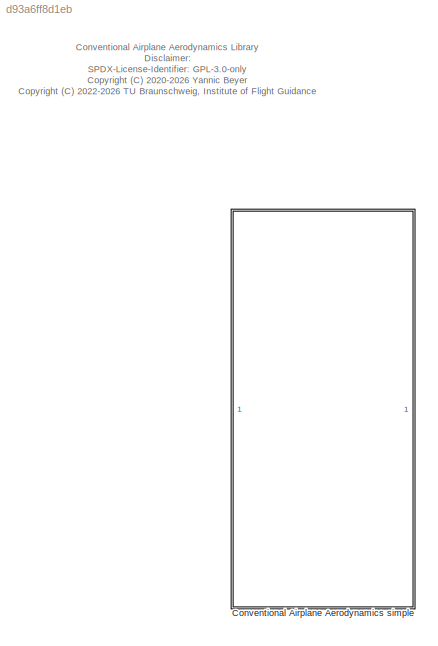
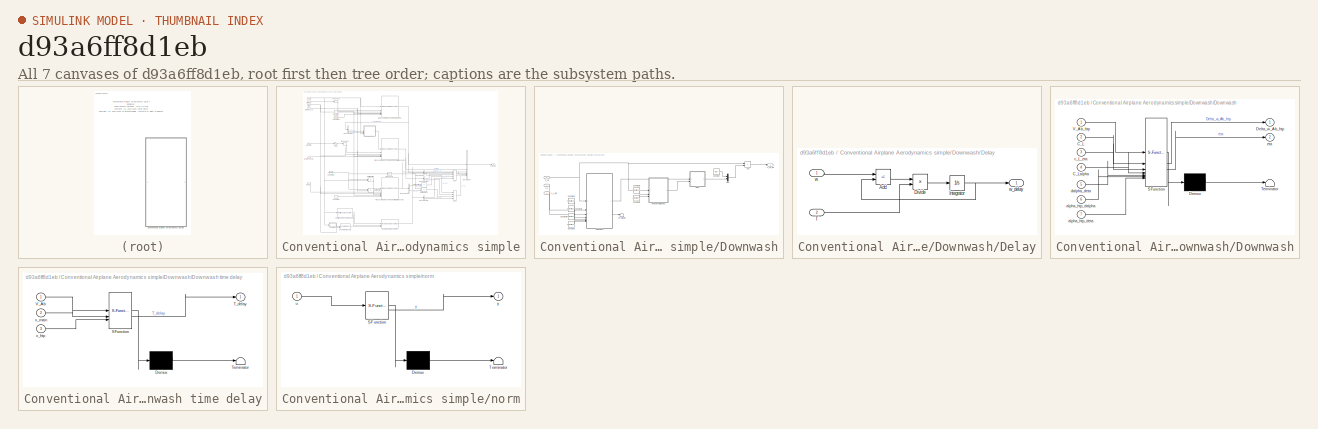
[diagram: thumbnail index - all 7 canvases of the model, root first then tree order]
MODEL slx_d93a6ff8d1eb
KIND library
CONFIG AbsTol = auto
CONFIG EnableMultiTasking = off
CONFIG FixedStep = auto
CONFIG MaxStep = auto
CONFIG MinStep = auto
CONFIG RelTol = 1e-3
CONFIG SampleTimeConstraint = Unconstrained
CONFIG SolverName = VariableStepAuto
CONFIG StartTime = 0.0
CONFIG StopTime = 10.0
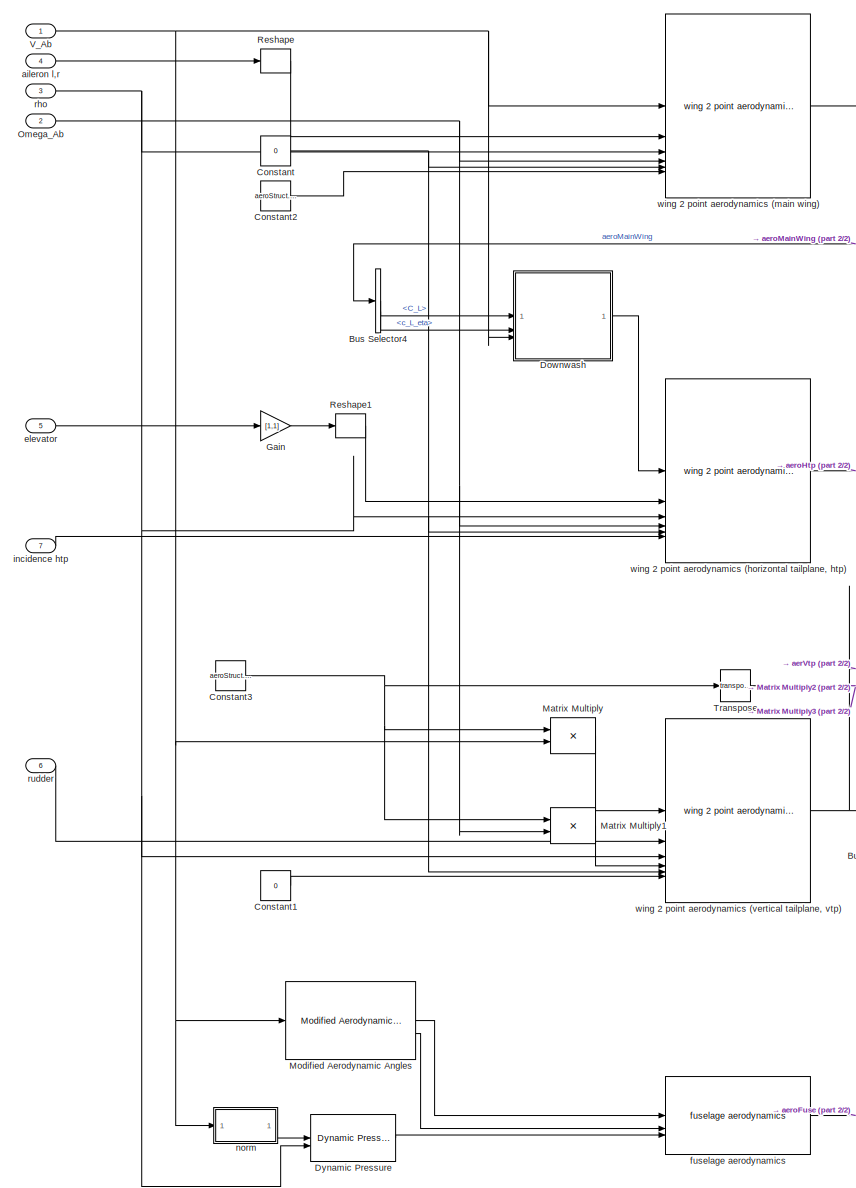
[diagram: Conventional Airplane Aerodynamics simple - part 1/2, left side, full height]
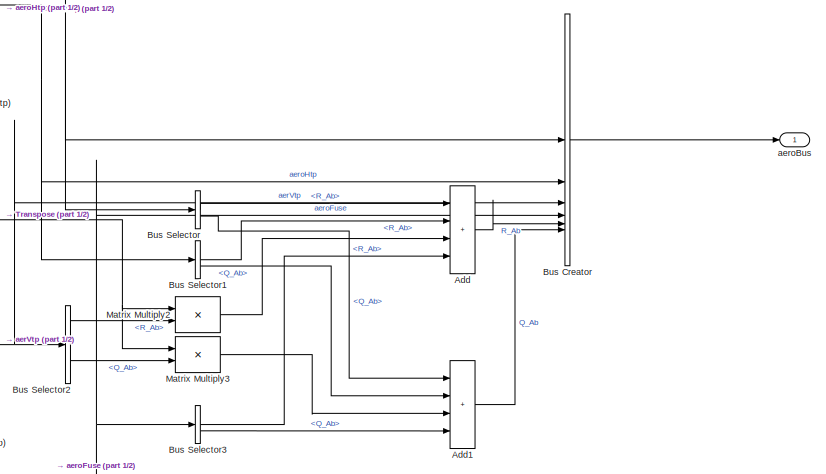
[diagram: Conventional Airplane Aerodynamics simple - part 2/2, middle right region]
BLOCK [SubSystem] Conventional Airplane Aerodynamics simple
BLOCK [Sum] Conventional Airplane Aerodynamics simple/Add
  IconShape = rectangular
  Inputs = ++++
BLOCK [Sum] Conventional Airplane Aerodynamics simple/Add1
  IconShape = rectangular
  Inputs = ++++
BLOCK [BusCreator] Conventional Airplane Aerodynamics simple/Bus Creator
  DisplayOption = bar
  InheritFromInputs = on
  Inputs = 6
BLOCK [BusSelector] Conventional Airplane Aerodynamics simple/Bus Selector
  OutputSignals = dynamicsBody.R_Ab,dynamicsBody.Q_Ab
BLOCK [BusSelector] Conventional Airplane Aerodynamics simple/Bus Selector1
  OutputSignals = dynamicsBody.R_Ab,dynamicsBody.Q_Ab
BLOCK [BusSelector] Conventional Airplane Aerodynamics simple/Bus Selector2
  OutputSignals = dynamicsBody.R_Ab,dynamicsBody.Q_Ab
BLOCK [BusSelector] Conventional Airplane Aerodynamics simple/Bus Selector3
  OutputSignals = R_Ab,Q_Ab
BLOCK [BusSelector] Conventional Airplane Aerodynamics simple/Bus Selector4
  OutputSignals = dynamicsWing.C_L,dynamicsWing.c_L_eta
BLOCK [Constant] Conventional Airplane Aerodynamics simple/Constant
  Value = 0
BLOCK [Constant] Conventional Airplane Aerodynamics simple/Constant1
  Value = 0
BLOCK [Constant] Conventional Airplane Aerodynamics simple/Constant2
  Value = aeroStruct.config.wingMainIncidence
BLOCK [Constant] Conventional Airplane Aerodynamics simple/Constant3
  Value = aeroStruct.config.wingVtpRot
BLOCK [SubSystem] Conventional Airplane Aerodynamics simple/Downwash
BLOCK [Sum] Conventional Airplane Aerodynamics simple/Downwash/Add
  IconShape = rectangular
BLOCK [Inport] Conventional Airplane Aerodynamics simple/Downwash/C_L
BLOCK [Constant] Conventional Airplane Aerodynamics simple/Downwash/Constant
  Value = [0;0]
  VectorParams1D = off
BLOCK [Constant] Conventional Airplane Aerodynamics simple/Downwash/Constant4
  Value = aeroStruct.wingMain.polar.params.C_Lalpha
BLOCK [Constant] Conventional Airplane Aerodynamics simple/Downwash/Constant5
  Value = aeroStruct.wingMain.flap.dalpha_deta
BLOCK [Constant] Conventional Airplane Aerodynamics simple/Downwash/Constant6
  Value = aeroStruct.downwash.alpha_htp_dalpha
BLOCK [Constant] Conventional Airplane Aerodynamics simple/Downwash/Constant7
  Value = aeroStruct.downwash.alpha_htp_deta
BLOCK [Constant] Conventional Airplane Aerodynamics simple/Downwash/Constant8
  Value = aeroStruct.config.wingMainPos(1)
BLOCK [Constant] Conventional Airplane Aerodynamics simple/Downwash/Constant9
  Value = aeroStruct.config.wingHtpPos(1)
BLOCK [SubSystem] Conventional Airplane Aerodynamics simple/Downwash/Delay
BLOCK [Sum] Conventional Airplane Aerodynamics simple/Downwash/Delay/Add
  IconShape = rectangular
  Inputs = +-
BLOCK [Product] Conventional Airplane Aerodynamics simple/Downwash/Delay/Divide
  Inputs = */
BLOCK [Integrator] Conventional Airplane Aerodynamics simple/Downwash/Delay/Integrator
BLOCK [Inport] Conventional Airplane Aerodynamics simple/Downwash/Delay/T
  Port = 2
BLOCK [Inport] Conventional Airplane Aerodynamics simple/Downwash/Delay/w
BLOCK [Outport] Conventional Airplane Aerodynamics simple/Downwash/Delay/w_delay
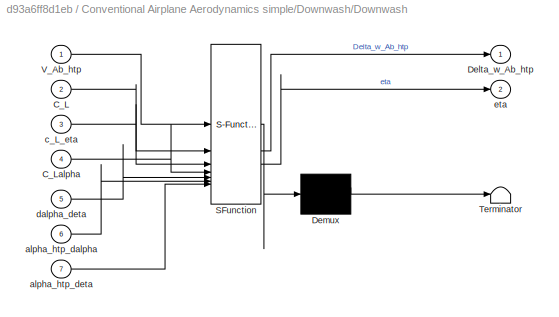
BLOCK [SubSystem] Conventional Airplane Aerodynamics simple/Downwash/Downwash
  ErrorFcn = Stateflow.Translate.translate
  PermitHierarchicalResolution = ExplicitOnly
  SFBlockType = MATLAB Function
  TreatAsAtomicUnit = on
BLOCK [SubSystem] Conventional Airplane Aerodynamics simple/Downwash/Downwash time delay
  ErrorFcn = Stateflow.Translate.translate
  PermitHierarchicalResolution = ExplicitOnly
  SFBlockType = MATLAB Function
  TreatAsAtomicUnit = on
BLOCK [Demux] Conventional Airplane Aerodynamics simple/Downwash/Downwash time delay/ Demux 
  Outputs = 1
BLOCK [S-Function] Conventional Airplane Aerodynamics simple/Downwash/Downwash time delay/ SFunction 
  EnableBusSupport = off
  FunctionName = sf_sfun
  PortCounts = [3 2]
  SFcnIsStateOwnerBlock = off
  SFunctionDeploymentMode = off
  Tag = Stateflow S-Function 120
BLOCK [Terminator] Conventional Airplane Aerodynamics simple/Downwash/Downwash time delay/ Terminator 
BLOCK [Outport] Conventional Airplane Aerodynamics simple/Downwash/Downwash time delay/T_delay
  VectorParamsAs1DForOutWhenUnconnected = off
BLOCK [Inport] Conventional Airplane Aerodynamics simple/Downwash/Downwash time delay/V_Ab
BLOCK [Inport] Conventional Airplane Aerodynamics simple/Downwash/Downwash time delay/x_htp
  Port = 3
BLOCK [Inport] Conventional Airplane Aerodynamics simple/Downwash/Downwash time delay/x_main
  Port = 2
BLOCK [Demux] Conventional Airplane Aerodynamics simple/Downwash/Downwash/ Demux 
  Outputs = 1
BLOCK [S-Function] Conventional Airplane Aerodynamics simple/Downwash/Downwash/ SFunction 
  EnableBusSupport = off
  FunctionName = sf_sfun
  PortCounts = [7 3]
  SFcnIsStateOwnerBlock = off
  SFunctionDeploymentMode = off
  Tag = Stateflow S-Function 119
BLOCK [Terminator] Conventional Airplane Aerodynamics simple/Downwash/Downwash/ Terminator 
BLOCK [Inport] Conventional Airplane Aerodynamics simple/Downwash/Downwash/C_L
  Port = 2
BLOCK [Inport] Conventional Airplane Aerodynamics simple/Downwash/Downwash/C_Lalpha
  Port = 4
BLOCK [Outport] Conventional Airplane Aerodynamics simple/Downwash/Downwash/Delta_w_Ab_htp
  VectorParamsAs1DForOutWhenUnconnected = off
BLOCK [Inport] Conventional Airplane Aerodynamics simple/Downwash/Downwash/V_Ab_htp
BLOCK [Inport] Conventional Airplane Aerodynamics simple/Downwash/Downwash/alpha_htp_dalpha
  Port = 6
BLOCK [Inport] Conventional Airplane Aerodynamics simple/Downwash/Downwash/alpha_htp_deta
  Port = 7
BLOCK [Inport] Conventional Airplane Aerodynamics simple/Downwash/Downwash/c_L_eta
  Port = 3
BLOCK [Inport] Conventional Airplane Aerodynamics simple/Downwash/Downwash/dalpha_deta
  Port = 5
BLOCK [Outport] Conventional Airplane Aerodynamics simple/Downwash/Downwash/eta
  Port = 2
  VectorParamsAs1DForOutWhenUnconnected = off
BLOCK [Mux] Conventional Airplane Aerodynamics simple/Downwash/Mux
  DisplayOption = bar
  Inputs = 2
BLOCK [Terminator] Conventional Airplane Aerodynamics simple/Downwash/Terminator
BLOCK [Inport] Conventional Airplane Aerodynamics simple/Downwash/V_Ab
  Port = 3
BLOCK [Outport] Conventional Airplane Aerodynamics simple/Downwash/V_Ab_htp
  VectorParamsAs1DForOutWhenUnconnected = off
BLOCK [Inport] Conventional Airplane Aerodynamics simple/Downwash/c_L_eta
  Port = 2
BLOCK [Reference] Conventional Airplane Aerodynamics simple/Dynamic Pressure  REF=flight_parameters_lib/Dynamic Pressure  (lib defined in slx_01e6108afe6f)
  SourceBlock = flight_parameters_lib/Dynamic Pressure
  SourceProductName = LADAC
BLOCK [Gain] Conventional Airplane Aerodynamics simple/Gain
  Gain = [1,1]
BLOCK [Product] Conventional Airplane Aerodynamics simple/Matrix Multiply
  Multiplication = Matrix(*)
BLOCK [Product] Conventional Airplane Aerodynamics simple/Matrix Multiply1
  Multiplication = Matrix(*)
BLOCK [Product] Conventional Airplane Aerodynamics simple/Matrix Multiply2
  Multiplication = Matrix(*)
BLOCK [Product] Conventional Airplane Aerodynamics simple/Matrix Multiply3
  Multiplication = Matrix(*)
BLOCK [Reference] Conventional Airplane Aerodynamics simple/Modified Aerodynamic Angles  REF=flight_parameters_lib/Modified Aerodynamic Angles  (lib defined in slx_01e6108afe6f)
  SourceBlock = flight_parameters_lib/Modified Aerodynamic Angles
  SourceProductName = LADAC
  SourceType = SubSystem
BLOCK [Inport] Conventional Airplane Aerodynamics simple/Omega_Ab
  Port = 2
BLOCK [Reshape] Conventional Airplane Aerodynamics simple/Reshape
  OutputDimensionality = Row vector (2-D)
BLOCK [Reshape] Conventional Airplane Aerodynamics simple/Reshape1
  OutputDimensionality = Row vector (2-D)
BLOCK [Math] Conventional Airplane Aerodynamics simple/Transpose
  Operator = transpose
  SignedPower = on
BLOCK [Inport] Conventional Airplane Aerodynamics simple/V_Ab
BLOCK [Outport] Conventional Airplane Aerodynamics simple/aeroBus
  VectorParamsAs1DForOutWhenUnconnected = off
BLOCK [Inport] Conventional Airplane Aerodynamics simple/aileron l,r
  Port = 4
BLOCK [Inport] Conventional Airplane Aerodynamics simple/elevator
  Port = 5
BLOCK [Reference] Conventional Airplane Aerodynamics simple/fuselage aerodynamics  REF=simpleFuselage_lib/fuselage aerodynamics
  SourceBlock = simpleFuselage_lib/fuselage aerodynamics
  SourceProductName = LADAC
BLOCK [Inport] Conventional Airplane Aerodynamics simple/incidence htp
  Port = 7
BLOCK [SubSystem] Conventional Airplane Aerodynamics simple/norm
  ErrorFcn = Stateflow.Translate.translate
  PermitHierarchicalResolution = ExplicitOnly
  SFBlockType = MATLAB Function
  TreatAsAtomicUnit = on
BLOCK [Demux] Conventional Airplane Aerodynamics simple/norm/ Demux 
  Outputs = 1
BLOCK [S-Function] Conventional Airplane Aerodynamics simple/norm/ SFunction 
  EnableBusSupport = off
  FunctionName = sf_sfun
  PortCounts = [1 2]
  SFcnIsStateOwnerBlock = off
  SFunctionDeploymentMode = off
  Tag = Stateflow S-Function 2
BLOCK [Terminator] Conventional Airplane Aerodynamics simple/norm/ Terminator 
BLOCK [Inport] Conventional Airplane Aerodynamics simple/norm/u
BLOCK [Outport] Conventional Airplane Aerodynamics simple/norm/y
  VectorParamsAs1DForOutWhenUnconnected = off
BLOCK [Inport] Conventional Airplane Aerodynamics simple/rho
  Port = 3
BLOCK [Inport] Conventional Airplane Aerodynamics simple/rudder
  Port = 6
BLOCK [Reference] Conventional Airplane Aerodynamics simple/wing 2 point aerodynamics (horizontal tailplane, htp)  REF=simple_wing_lib/wing 2 point aerodynamics  (lib defined in slx_d7e68b13d310)
  SourceBlock = simple_wing_lib/wing 2 point aerodynamics
  SourceProductName = LADAC
BLOCK [Reference] Conventional Airplane Aerodynamics simple/wing 2 point aerodynamics (main wing)  REF=simple_wing_lib/wing 2 point aerodynamics  (lib defined in slx_d7e68b13d310)
  SourceBlock = simple_wing_lib/wing 2 point aerodynamics
  SourceProductName = LADAC
BLOCK [Reference] Conventional Airplane Aerodynamics simple/wing 2 point aerodynamics (vertical tailplane, vtp)  REF=simple_wing_lib/wing 2 point aerodynamics  (lib defined in slx_d7e68b13d310)
  SourceBlock = simple_wing_lib/wing 2 point aerodynamics
  SourceProductName = LADAC
ANNOTATION (root): Conventional Airplane Aerodynamics Library Disclaimer: SPDX-License-Identifier: GPL-3.0-only <copyright redacted>
LINE Conventional Airplane Aerodynamics simple/Add1:1 -> Conventional Airplane Aerodynamics simple/Bus Creator:6
LINE Conventional Airplane Aerodynamics simple/Add:1 -> Conventional Airplane Aerodynamics simple/Bus Creator:5
LINE Conventional Airplane Aerodynamics simple/Bus Creator:1 -> Conventional Airplane Aerodynamics simple/aeroBus:1
LINE Conventional Airplane Aerodynamics simple/Bus Selector1:1 -> Conventional Airplane Aerodynamics simple/Add:2
LINE Conventional Airplane Aerodynamics simple/Bus Selector1:2 -> Conventional Airplane Aerodynamics simple/Add1:2
LINE Conventional Airplane Aerodynamics simple/Bus Selector2:1 -> Conventional Airplane Aerodynamics simple/Matrix Multiply2:2
LINE Conventional Airplane Aerodynamics simple/Bus Selector2:2 -> Conventional Airplane Aerodynamics simple/Matrix Multiply3:2
LINE Conventional Airplane Aerodynamics simple/Bus Selector3:1 -> Conventional Airplane Aerodynamics simple/Add:4
LINE Conventional Airplane Aerodynamics simple/Bus Selector3:2 -> Conventional Airplane Aerodynamics simple/Add1:4
LINE Conventional Airplane Aerodynamics simple/Bus Selector4:1 -> Conventional Airplane Aerodynamics simple/Downwash:1
LINE Conventional Airplane Aerodynamics simple/Bus Selector4:2 -> Conventional Airplane Aerodynamics simple/Downwash:2
LINE Conventional Airplane Aerodynamics simple/Bus Selector:1 -> Conventional Airplane Aerodynamics simple/Add:1
LINE Conventional Airplane Aerodynamics simple/Bus Selector:2 -> Conventional Airplane Aerodynamics simple/Add1:1
LINE Conventional Airplane Aerodynamics simple/Constant1:1 -> Conventional Airplane Aerodynamics simple/wing 2 point aerodynamics (vertical tailplane, vtp):6
LINE Conventional Airplane Aerodynamics simple/Constant2:1 -> Conventional Airplane Aerodynamics simple/wing 2 point aerodynamics (main wing):6
NET Conventional Airplane Aerodynamics simple/Constant3:1 -> Conventional Airplane Aerodynamics simple/Matrix Multiply1:1, Conventional Airplane Aerodynamics simple/Matrix Multiply:1, Conventional Airplane Aerodynamics simple/Transpose:1
NET Conventional Airplane Aerodynamics simple/Constant:1 -> Conventional Airplane Aerodynamics simple/wing 2 point aerodynamics (horizontal tailplane, htp):5, Conventional Airplane Aerodynamics simple/wing 2 point aerodynamics (main wing):5, Conventional Airplane Aerodynamics simple/wing 2 point aerodynamics (vertical tailplane, vtp):5
LINE Conventional Airplane Aerodynamics simple/Downwash/Add:1 -> Conventional Airplane Aerodynamics simple/Downwash/V_Ab_htp:1
LINE Conventional Airplane Aerodynamics simple/Downwash/C_L:1 -> Conventional Airplane Aerodynamics simple/Downwash/Downwash:2
LINE Conventional Airplane Aerodynamics simple/Downwash/Constant4:1 -> Conventional Airplane Aerodynamics simple/Downwash/Downwash:4
LINE Conventional Airplane Aerodynamics simple/Downwash/Constant5:1 -> Conventional Airplane Aerodynamics simple/Downwash/Downwash:5
LINE Conventional Airplane Aerodynamics simple/Downwash/Constant6:1 -> Conventional Airplane Aerodynamics simple/Downwash/Downwash:6
LINE Conventional Airplane Aerodynamics simple/Downwash/Constant7:1 -> Conventional Airplane Aerodynamics simple/Downwash/Downwash:7
LINE Conventional Airplane Aerodynamics simple/Downwash/Constant8:1 -> Conventional Airplane Aerodynamics simple/Downwash/Downwash time delay:2
LINE Conventional Airplane Aerodynamics simple/Downwash/Constant9:1 -> Conventional Airplane Aerodynamics simple/Downwash/Downwash time delay:3
LINE Conventional Airplane Aerodynamics simple/Downwash/Constant:1 -> Conventional Airplane Aerodynamics simple/Downwash/Mux:1
LINE Conventional Airplane Aerodynamics simple/Downwash/Delay/Add:1 -> Conventional Airplane Aerodynamics simple/Downwash/Delay/Divide:1
LINE Conventional Airplane Aerodynamics simple/Downwash/Delay/Divide:1 -> Conventional Airplane Aerodynamics simple/Downwash/Delay/Integrator:1
NET Conventional Airplane Aerodynamics simple/Downwash/Delay/Integrator:1 -> Conventional Airplane Aerodynamics simple/Downwash/Delay/Add:2, Conventional Airplane Aerodynamics simple/Downwash/Delay/w_delay:1
LINE Conventional Airplane Aerodynamics simple/Downwash/Delay/T:1 -> Conventional Airplane Aerodynamics simple/Downwash/Delay/Divide:2
LINE Conventional Airplane Aerodynamics simple/Downwash/Delay/w:1 -> Conventional Airplane Aerodynamics simple/Downwash/Delay/Add:1
LINE Conventional Airplane Aerodynamics simple/Downwash/Delay:1 -> Conventional Airplane Aerodynamics simple/Downwash/Mux:2
LINE Conventional Airplane Aerodynamics simple/Downwash/Downwash time delay:1 -> Conventional Airplane Aerodynamics simple/Downwash/Delay:2
LINE Conventional Airplane Aerodynamics simple/Downwash/Downwash:1 -> Conventional Airplane Aerodynamics simple/Downwash/Delay:1
LINE Conventional Airplane Aerodynamics simple/Downwash/Downwash:2 -> Conventional Airplane Aerodynamics simple/Downwash/Terminator:1
LINE Conventional Airplane Aerodynamics simple/Downwash/Mux:1 -> Conventional Airplane Aerodynamics simple/Downwash/Add:2
NET Conventional Airplane Aerodynamics simple/Downwash/V_Ab:1 -> Conventional Airplane Aerodynamics simple/Downwash/Add:1, Conventional Airplane Aerodynamics simple/Downwash/Downwash time delay:1, Conventional Airplane Aerodynamics simple/Downwash/Downwash:1
LINE Conventional Airplane Aerodynamics simple/Downwash/c_L_eta:1 -> Conventional Airplane Aerodynamics simple/Downwash/Downwash:3
LINE Conventional Airplane Aerodynamics simple/Downwash:1 -> Conventional Airplane Aerodynamics simple/wing 2 point aerodynamics (horizontal tailplane, htp):1
LINE Conventional Airplane Aerodynamics simple/Dynamic Pressure:1 -> Conventional Airplane Aerodynamics simple/fuselage aerodynamics:3
LINE Conventional Airplane Aerodynamics simple/Gain:1 -> Conventional Airplane Aerodynamics simple/Reshape1:1
LINE Conventional Airplane Aerodynamics simple/Matrix Multiply1:1 -> Conventional Airplane Aerodynamics simple/wing 2 point aerodynamics (vertical tailplane, vtp):4
LINE Conventional Airplane Aerodynamics simple/Matrix Multiply2:1 -> Conventional Airplane Aerodynamics simple/Add:3
LINE Conventional Airplane Aerodynamics simple/Matrix Multiply3:1 -> Conventional Airplane Aerodynamics simple/Add1:3
LINE Conventional Airplane Aerodynamics simple/Matrix Multiply:1 -> Conventional Airplane Aerodynamics simple/wing 2 point aerodynamics (vertical tailplane, vtp):1
LINE Conventional Airplane Aerodynamics simple/Modified Aerodynamic Angles:1 -> Conventional Airplane Aerodynamics simple/fuselage aerodynamics:1
LINE Conventional Airplane Aerodynamics simple/Modified Aerodynamic Angles:2 -> Conventional Airplane Aerodynamics simple/fuselage aerodynamics:2
NET Conventional Airplane Aerodynamics simple/Omega_Ab:1 -> Conventional Airplane Aerodynamics simple/Matrix Multiply1:2, Conventional Airplane Aerodynamics simple/wing 2 point aerodynamics (horizontal tailplane, htp):4, Conventional Airplane Aerodynamics simple/wing 2 point aerodynamics (main wing):4
LINE Conventional Airplane Aerodynamics simple/Reshape1:1 -> Conventional Airplane Aerodynamics simple/wing 2 point aerodynamics (horizontal tailplane, htp):2
LINE Conventional Airplane Aerodynamics simple/Reshape:1 -> Conventional Airplane Aerodynamics simple/wing 2 point aerodynamics (main wing):2
NET Conventional Airplane Aerodynamics simple/Transpose:1 -> Conventional Airplane Aerodynamics simple/Matrix Multiply2:1, Conventional Airplane Aerodynamics simple/Matrix Multiply3:1
NET Conventional Airplane Aerodynamics simple/V_Ab:1 -> Conventional Airplane Aerodynamics simple/Downwash:3, Conventional Airplane Aerodynamics simple/Matrix Multiply:2, Conventional Airplane Aerodynamics simple/Modified Aerodynamic Angles:1, Conventional Airplane Aerodynamics simple/norm:1, Conventional Airplane Aerodynamics simple/wing 2 point aerodynamics (main wing):1
LINE Conventional Airplane Aerodynamics simple/aileron l,r:1 -> Conventional Airplane Aerodynamics simple/Reshape:1
LINE Conventional Airplane Aerodynamics simple/elevator:1 -> Conventional Airplane Aerodynamics simple/Gain:1
NET Conventional Airplane Aerodynamics simple/fuselage aerodynamics:1 -> Conventional Airplane Aerodynamics simple/Bus Creator:4, Conventional Airplane Aerodynamics simple/Bus Selector3:1
LINE Conventional Airplane Aerodynamics simple/incidence htp:1 -> Conventional Airplane Aerodynamics simple/wing 2 point aerodynamics (horizontal tailplane, htp):6
LINE Conventional Airplane Aerodynamics simple/norm:1 -> Conventional Airplane Aerodynamics simple/Dynamic Pressure:1
NET Conventional Airplane Aerodynamics simple/rho:1 -> Conventional Airplane Aerodynamics simple/Dynamic Pressure:2, Conventional Airplane Aerodynamics simple/wing 2 point aerodynamics (horizontal tailplane, htp):3, Conventional Airplane Aerodynamics simple/wing 2 point aerodynamics (main wing):3, Conventional Airplane Aerodynamics simple/wing 2 point aerodynamics (vertical tailplane, vtp):3
LINE Conventional Airplane Aerodynamics simple/rudder:1 -> Conventional Airplane Aerodynamics simple/wing 2 point aerodynamics (vertical tailplane, vtp):2
NET Conventional Airplane Aerodynamics simple/wing 2 point aerodynamics (horizontal tailplane, htp):1 -> Conventional Airplane Aerodynamics simple/Bus Creator:2, Conventional Airplane Aerodynamics simple/Bus Selector1:1
NET Conventional Airplane Aerodynamics simple/wing 2 point aerodynamics (main wing):1 -> Conventional Airplane Aerodynamics simple/Bus Creator:1, Conventional Airplane Aerodynamics simple/Bus Selector4:1, Conventional Airplane Aerodynamics simple/Bus Selector:1
NET Conventional Airplane Aerodynamics simple/wing 2 point aerodynamics (vertical tailplane, vtp):1 -> Conventional Airplane Aerodynamics simple/Bus Creator:3, Conventional Airplane Aerodynamics simple/Bus Selector2:1
note: NET lines group one-source signal fan-out (src -> all destinations, sorted); 1:1 wires keep LINE
CHART Conventional Airplane Aerodynamics
simple/norm states=1 transitions=1
  STATE_LABEL 'eML_blk_kernel()'
  STATE_LABEL 'SCRIPT:\nfunction y = fcn(u)\ny = norm(u,2);\n\n'
CHART Conventional Airplane Aerodynamics
simple/Downwash/Downwash states=1 transitions=1
  STATE_LABEL 'eML_blk_kernel()'
  STATE_LABEL "SCRIPT:\nfunction [Delta_w_Ab_htp,eta] = fcn(V_Ab_htp,C_L, c_L_eta, C_Lalpha, dalpha_deta, alpha_htp_dalpha, alpha_htp_deta)\nC_L_alpha = mean(C_L) - sum(c_L_eta);\n% downwash due to main wing lift\nalpha = C_L_alpha / C_Lalpha;\nalpha_htp = alpha_htp_dalpha(:)' * alpha;\neta = c_L_eta ./ (C_Lalpha * dalpha_deta(:)');\n% add downwash due to main wing flap deflections\nalpha_htp = alpha_htp + sum(alpha_htp...<+308ch>"
CHART Conventional Airplane Aerodynamics
simple/Downwash/Downwash time delay states=1 transitions=1
  STATE_LABEL 'eML_blk_kernel()'
  STATE_LABEL 'SCRIPT:\nfunction T_delay = fcn(V_Ab, x_main, x_htp)\nT_delay = divideFinite( x_main - x_htp, V_Ab(1) );\n% avoid singularity\nT_delay(T_delay<0.001) = 0.001;\nend'
CHART  states=0 transitions=0
CHART  states=0 transitions=0
CHART  states=0 transitions=0
